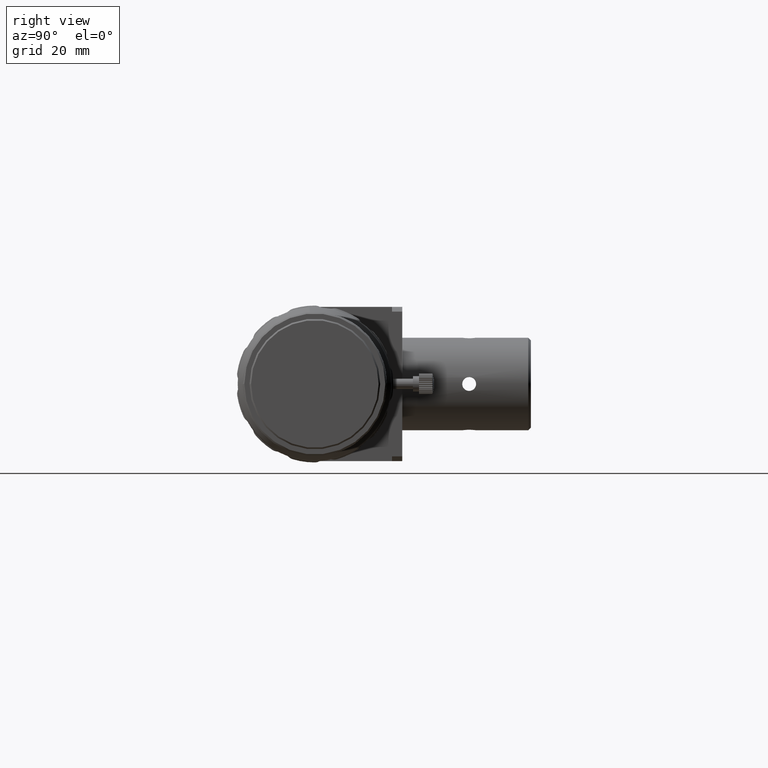
[diagram: clean part render]
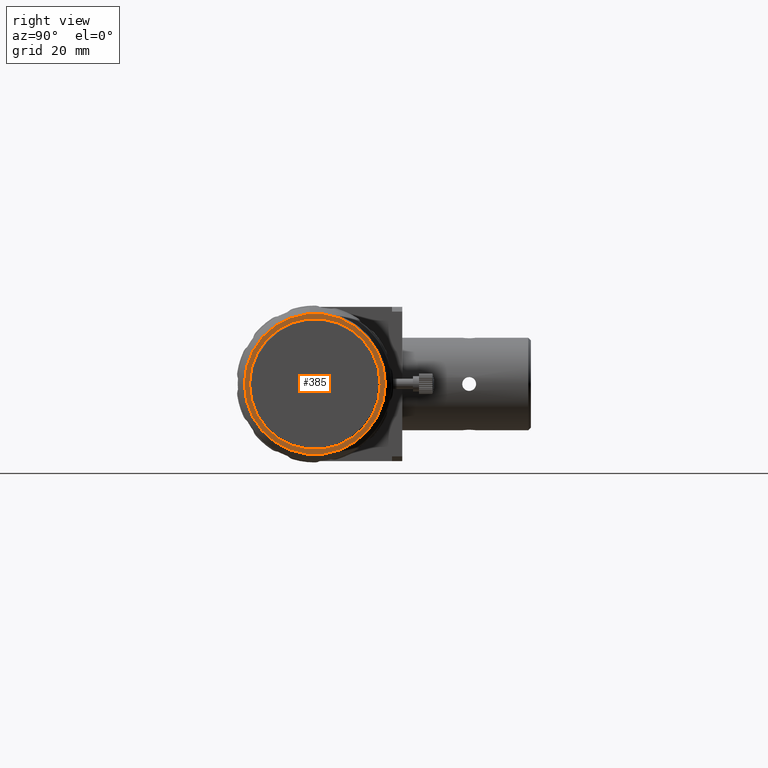
[diagram: same view with one face highlighted and labeled with its STEP entity id]
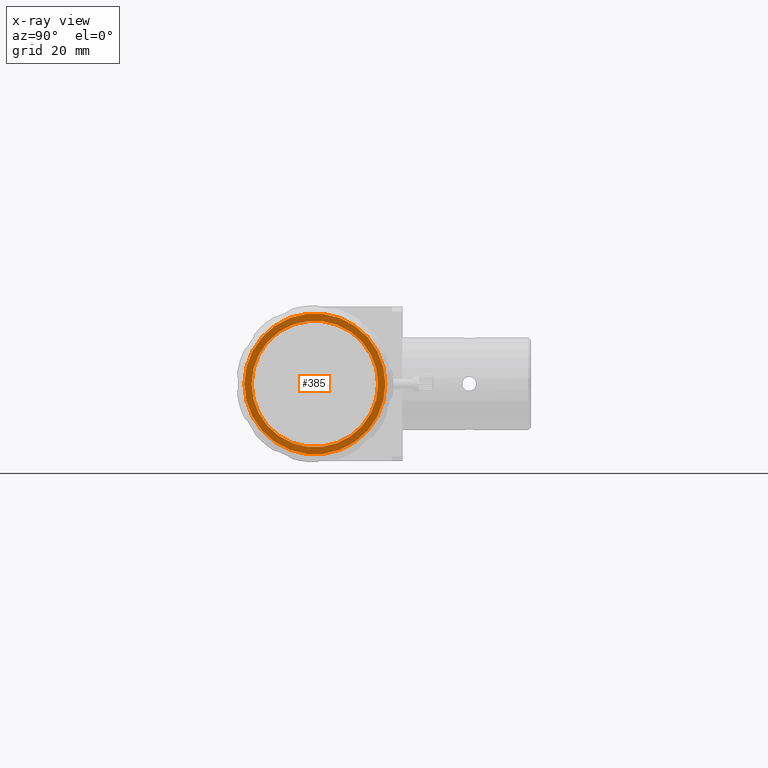
[diagram: x-ray of the same camera — body ghosted, the highlighted face saturated]
A machine part, right view. The second image highlights one B-rep face of the part: STEP entity #385.
The next image is the same camera in x-ray: the body ghosted, the highlighted face saturated — about 0% of this face is hidden behind the body in this view.
In plain terms, the highlighted planar face has unit normal (-1, 0, -0).
Its self-contained STEP definition (entity closure, byte-faithful):
#157 = CARTESIAN_POINT ( 'NONE',  ( 66.63827917272459445, -5.646895513264086119, 10.92714834997112838 ) ) ;
#291 = AXIS2_PLACEMENT_3D ( 'NONE', #157, #3128, #4315 ) ;
#304 = ORIENTED_EDGE ( 'NONE', *, *, #2817, .F. ) ;
#348 = CARTESIAN_POINT ( 'NONE',  ( 66.63827917272459445, 12.29999999999998295, -3.555772786615165965E-15 ) ) ;
#371 = FACE_OUTER_BOUND ( 'NONE', #4384, .T. ) ;
#385 = ADVANCED_FACE ( '��������1_�Q', ( #2054, #371 ), #2010, .F. ) ;
#799 = AXIS2_PLACEMENT_3D ( 'NONE', #1663, #3491, #1215 ) ;
#1215 = DIRECTION ( 'NONE',  ( -1.012977212249232215E-15, -1.000000000000000000, 0.000000000000000000 ) ) ;
#1663 = CARTESIAN_POINT ( 'NONE',  ( 66.63827917272459445, 2.401727144408241318E-15, -3.839296611505799494E-15 ) ) ;
#1934 = DIRECTION ( 'NONE',  ( 1.000000000000000000, -3.688801789433294533E-16, 1.785482631856101845E-16 ) ) ;
#2010 = PLANE ( 'NONE',  #291 ) ;
#2054 = FACE_BOUND ( 'NONE', #4156, .T. ) ;
#2806 = CARTESIAN_POINT ( 'NONE',  ( 66.63827917272458023, -13.69999999999997264, -3.839296611505799494E-15 ) ) ;
#2817 = EDGE_CURVE ( 'NONE', #4165, #4165, #6521, .T. ) ;
#3128 = DIRECTION ( 'NONE',  ( -1.000000000000000000, 3.688801789433243258E-16, -1.785482631856128716E-16 ) ) ;
#3491 = DIRECTION ( 'NONE',  ( -1.000000000000000000, 6.678602318565301306E-16, -2.127706981400425684E-16 ) ) ;
#3534 = AXIS2_PLACEMENT_3D ( 'NONE', #5887, #1934, #6492 ) ;
#3788 = CIRCLE ( 'NONE', #799, 13.69999999999997442 ) ;
#4138 = EDGE_CURVE ( 'NONE', #4410, #4410, #3788, .T. ) ;
#4156 = EDGE_LOOP ( 'NONE', ( #304 ) ) ;
#4165 = VERTEX_POINT ( 'NONE', #348 ) ;
#4315 = DIRECTION ( 'NONE',  ( -3.688801789433243258E-16, -1.000000000000000000, 0.000000000000000000 ) ) ;
#4384 = EDGE_LOOP ( 'NONE', ( #6103 ) ) ;
#4410 = VERTEX_POINT ( 'NONE', #2806 ) ;
#5887 = CARTESIAN_POINT ( 'NONE',  ( 66.63827917272459445, 2.626524719680015799E-15, -3.555772786615165965E-15 ) ) ;
#6103 = ORIENTED_EDGE ( 'NONE', *, *, #4138, .F. ) ;
#6492 = DIRECTION ( 'NONE',  ( 0.000000000000000000, 1.000000000000000000, 0.000000000000000000 ) ) ;
#6521 = CIRCLE ( 'NONE', #3534, 12.29999999999997939 ) ;